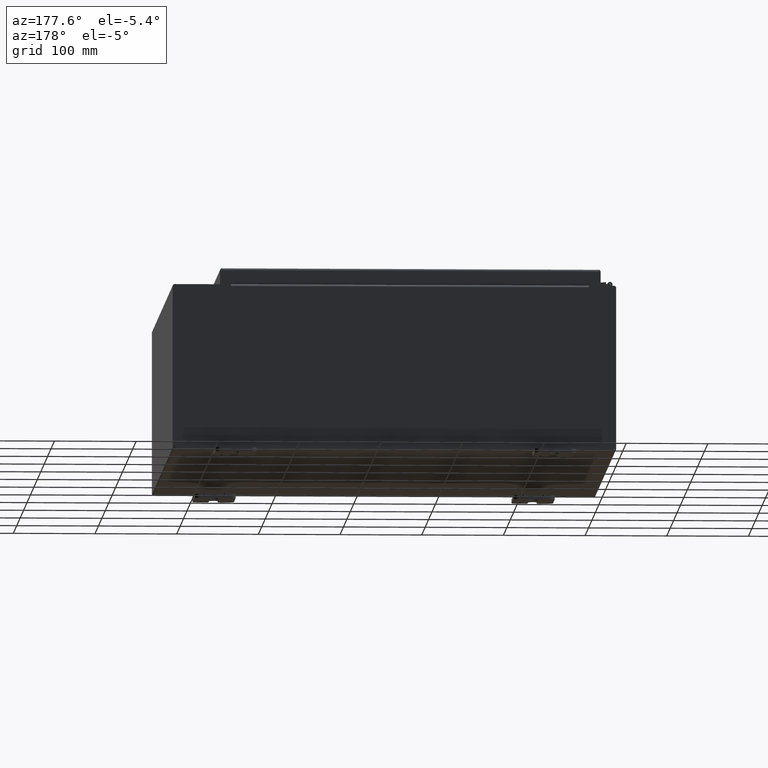
[diagram: clean part render]
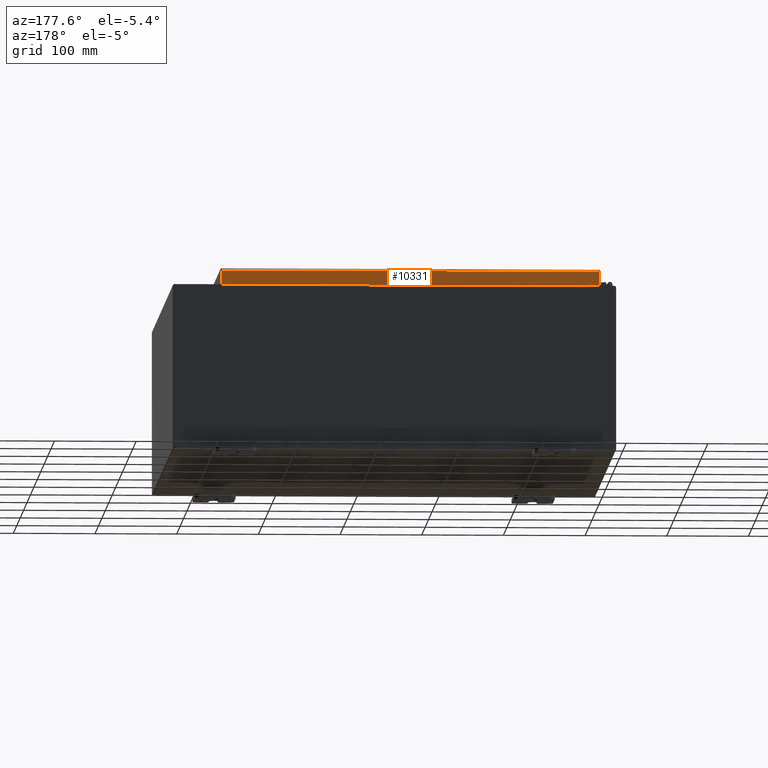
[diagram: same view with one face highlighted and labeled with its STEP entity id]
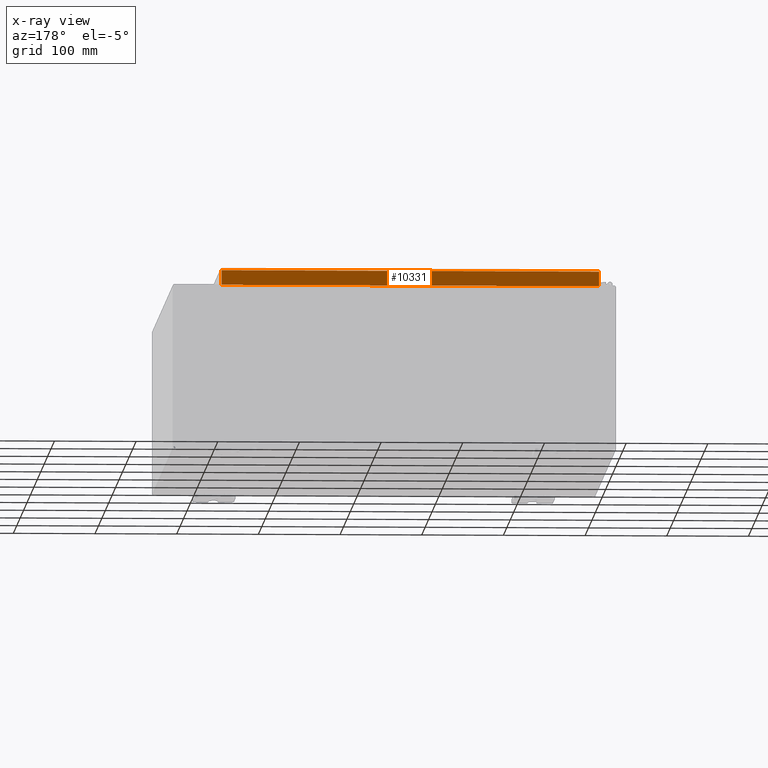
[diagram: x-ray of the same camera — body ghosted, the highlighted face saturated]
A machine part, auxiliary view. The second image highlights one B-rep face of the part: STEP entity #10331.
The next image is the same camera in x-ray: the body ghosted, the highlighted face saturated — about 0% of this face is hidden behind the body in this view.
In plain terms, the highlighted planar face has unit normal (-0, 1, 0).
Its self-contained STEP definition (entity closure, byte-faithful):
#1312=FACE_OUTER_BOUND($,#1939,.T.);
#1939=EDGE_LOOP($,(#8628,#8629,#8630,#8631));
#2899=LINE($,#17017,#3864);
#2905=LINE($,#17045,#3870);
#2910=LINE($,#17107,#3875);
#2912=LINE($,#17110,#3877);
#3864=VECTOR($,#13704,18.1943357864376);
#3870=VECTOR($,#13714,0.70725);
#3875=VECTOR($,#13721,0.70725);
#3877=VECTOR($,#13725,18.1943357864376);
#4792=VERTEX_POINT($,#17015);
#4793=VERTEX_POINT($,#17016);
#4799=VERTEX_POINT($,#17044);
#4801=VERTEX_POINT($,#17106);
#6092=EDGE_CURVE($,#4792,#4793,#2899,.T.);
#6100=EDGE_CURVE($,#4799,#4793,#2905,.T.);
#6107=EDGE_CURVE($,#4792,#4801,#2910,.T.);
#6109=EDGE_CURVE($,#4801,#4799,#2912,.T.);
#8628=ORIENTED_EDGE($,*,*,#6092,.T.);
#8629=ORIENTED_EDGE($,*,*,#6100,.F.);
#8630=ORIENTED_EDGE($,*,*,#6109,.F.);
#8631=ORIENTED_EDGE($,*,*,#6107,.F.);
#9365=PLANE($,#11207);
#10331=ADVANCED_FACE($,(#1312),#9365,.T.);
#11207=AXIS2_PLACEMENT_3D($,#17111,#13726,#13727);
#13704=DIRECTION($,(1.,4.13595909298984E-016,1.62490024913854E-029));
#13714=DIRECTION($,(9.4909827659403E-030,-6.22337217189661E-014,1.));
#13721=DIRECTION($,(-9.4909827659403E-030,6.22337217189661E-014,-1.));
#13725=DIRECTION($,(1.,4.60003132009215E-016,-3.08755996751464E-016));
#13726=DIRECTION('center_axis',(-4.13595909298984E-016,1.,5.85648221910129E-014));
#13727=DIRECTION('ref_axis',(1.,0.,1.40998324127395E-016));
#17015=CARTESIAN_POINT('',(0.0747071067811824,22.5,-0.031249999999994));
#17016=CARTESIAN_POINT('',(18.2690428932188,22.5,-0.0312499999999968));
#17017=CARTESIAN_POINT($,(9.171875,22.5,-0.0312499999999968));
#17044=CARTESIAN_POINT('',(18.2690428932188,22.5,-0.738499999999998));
#17045=CARTESIAN_POINT($,(18.2690428932188,22.5,-0.0312499999999968));
#17106=CARTESIAN_POINT('',(0.0747071067811813,22.5,-0.738499999999992));
#17107=CARTESIAN_POINT($,(0.0747071067811813,22.5,-0.0312499999999912));
#17110=CARTESIAN_POINT($,(0.0747071067811813,22.5,-0.738499999999992));
#17111=CARTESIAN_POINT('Origin',(9.171875,22.5,-0.342274312471006));